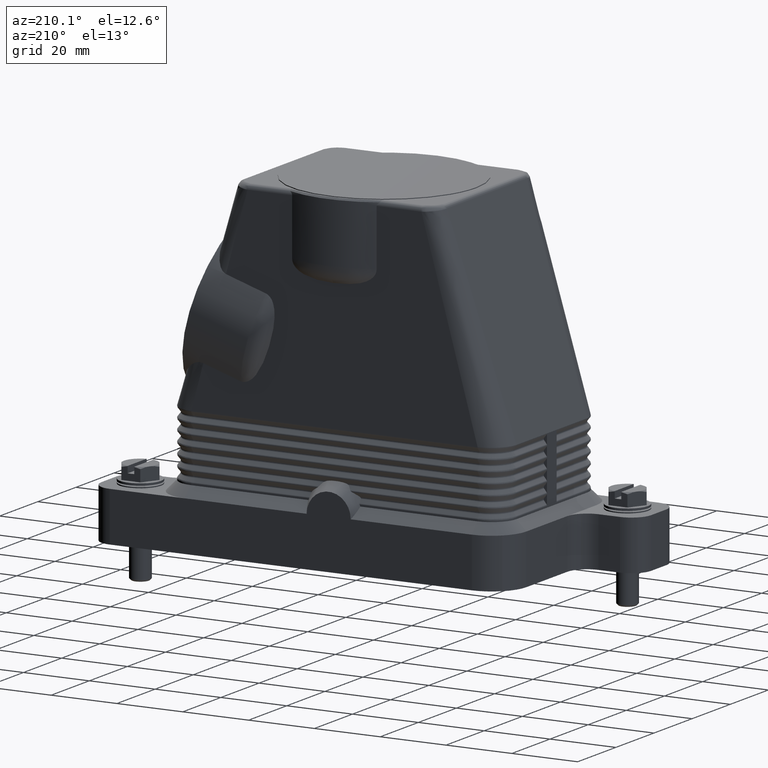
[diagram: clean part render]
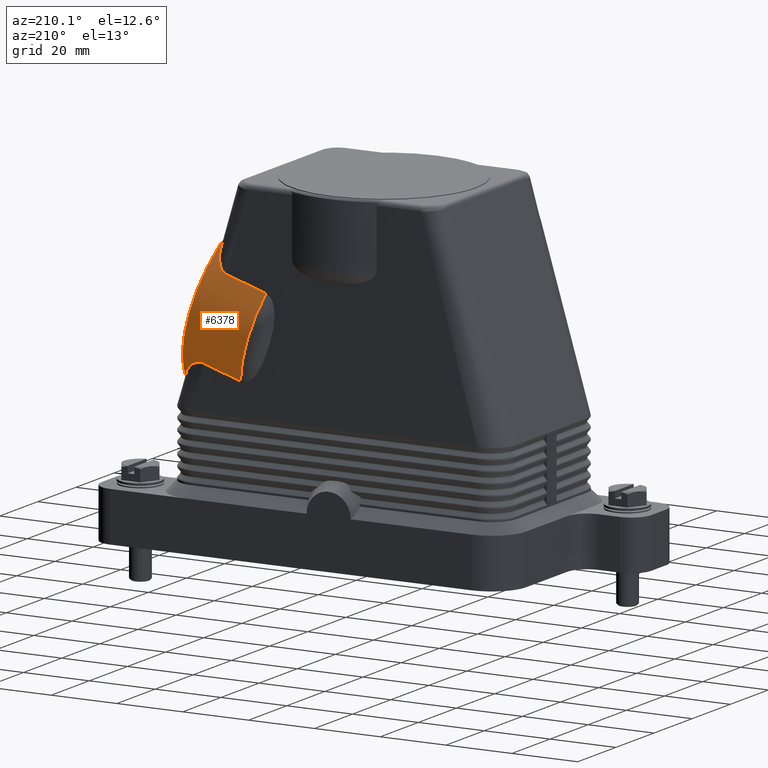
[diagram: same view with one face highlighted and labeled with its STEP entity id]
A machine part, auxiliary view. The second image highlights one B-rep face of the part: STEP entity #6378.
In plain terms, the highlighted cylindrical surface (partial cylindrical patch) has radius 29 mm, axis along (-0.9531, 0, -0.3025).
Its self-contained STEP definition (entity closure, byte-faithful):
#6243=CARTESIAN_POINT('',(33.492847036137952,0.0,62.741032444117224));
#6244=DIRECTION('',(-0.953137879773766,0.0,-0.302536249299766));
#6245=DIRECTION('',(-0.302536249299748,0.0,0.953137879773772));
#6246=AXIS2_PLACEMENT_3D('',#6243,#6244,#6245);
#6247=CYLINDRICAL_SURFACE('',#6246,28.999999999999975);
#6248=CARTESIAN_POINT('',(33.535821194352074,0.0,93.180491263579228));
#6249=VERTEX_POINT('',#6248);
#6250=CARTESIAN_POINT('',(33.487275453484898,-3.551358E-015,93.165082321522590));
#6251=VERTEX_POINT('',#6250);
#6252=CARTESIAN_POINT('',(33.535821194352074,0.0,93.180491263579228));
#6253=DIRECTION('',(-0.953137879773845,-6.972670E-014,-0.302536249299518));
#6254=VECTOR('',#6253,0.050932548057680);
#6255=LINE('',#6252,#6254);
#6256=EDGE_CURVE('',#6249,#6251,#6255,.T.);
#6257=ORIENTED_EDGE('',*,*,#6256,.F.);
#6258=CARTESIAN_POINT('',(51.082923653738504,3.551358E-015,37.898494236700905));
#6259=VERTEX_POINT('',#6258);
#6260=CARTESIAN_POINT('',(42.309372424045293,0.0,65.539492750140070));
#6261=DIRECTION('',(-0.953137879773771,0.0,-0.302536249299748));
#6262=DIRECTION('',(-0.302536249299748,0.0,0.953137879773771));
#6263=AXIS2_PLACEMENT_3D('',#6260,#6261,#6262);
#6264=CIRCLE('',#6263,28.999999999999954);
#6265=EDGE_CURVE('',#6249,#6259,#6264,.T.);
#6266=ORIENTED_EDGE('',*,*,#6265,.T.);
#6267=CARTESIAN_POINT('',(51.0,3.551358E-015,37.872173374092590));
#6268=VERTEX_POINT('',#6267);
#6269=CARTESIAN_POINT('',(51.0,3.551358E-015,37.872173374092590));
#6270=DIRECTION('',(0.953137879773672,-3.626918E-029,0.302536249300061));
#6271=VECTOR('',#6270,0.087000690559266);
#6272=LINE('',#6269,#6271);
#6273=EDGE_CURVE('',#6268,#6259,#6272,.T.);
#6274=ORIENTED_EDGE('',*,*,#6273,.F.);
#6275=CARTESIAN_POINT('',(51.0,2.500000000000000,37.985440904324719));
#6276=VERTEX_POINT('',#6275);
#6277=CARTESIAN_POINT('',(51.0,0.0,68.297991731960536));
#6278=DIRECTION('',(-1.0,0.0,0.0));
#6279=DIRECTION('',(0.0,0.0,1.0));
#6280=AXIS2_PLACEMENT_3D('',#6277,#6278,#6279);
#6281=ELLIPSE('',#6280,30.425818357867946,28.999999999999975);
#6282=EDGE_CURVE('',#6276,#6268,#6281,.T.);
#6283=ORIENTED_EDGE('',*,*,#6282,.F.);
#6284=CARTESIAN_POINT('',(51.045868307072212,2.500000000000000,38.0));
#6285=VERTEX_POINT('',#6284);
#6286=CARTESIAN_POINT('',(51.0,2.500000000000000,37.985440904324719));
#6287=DIRECTION('',(0.953137879773740,0.0,0.302536249299848));
#6288=VECTOR('',#6287,0.048123475150416);
#6289=LINE('',#6286,#6288);
#6290=EDGE_CURVE('',#6276,#6285,#6289,.T.);
#6291=ORIENTED_EDGE('',*,*,#6290,.T.);
#6292=CARTESIAN_POINT('',(51.0,2.655497513687477,38.0));
#6293=VERTEX_POINT('',#6292);
#6294=CARTESIAN_POINT('',(-44.453565209602957,0.0,38.0));
#6295=DIRECTION('',(0.0,0.0,1.0));
#6296=DIRECTION('',(-1.0,0.0,0.0));
#6297=AXIS2_PLACEMENT_3D('',#6294,#6295,#6296);
#6298=ELLIPSE('',#6297,95.856281907116156,28.999999999999975);
#6299=EDGE_CURVE('',#6285,#6293,#6298,.T.);
#6300=ORIENTED_EDGE('',*,*,#6299,.T.);
#6301=CARTESIAN_POINT('',(48.954645130864243,18.755669358655240,44.442867837777634));
#6302=VERTEX_POINT('',#6301);
#6303=CARTESIAN_POINT('',(42.262070302744476,0.0,65.524478546354914));
#6304=DIRECTION('',(-0.953124267144543,0.0,-0.302579132426839));
#6305=DIRECTION('',(-0.302579132426839,0.0,0.953124267144543));
#6306=AXIS2_PLACEMENT_3D('',#6303,#6304,#6305);
#6307=ELLIPSE('',#6306,29.000000029351835,28.999999999999975);
#6308=EDGE_CURVE('',#6302,#6293,#6307,.T.);
#6309=ORIENTED_EDGE('',*,*,#6308,.F.);
#6310=CARTESIAN_POINT('',(39.813731608743971,26.000000000000007,51.270566208521714));
#6311=VERTEX_POINT('',#6310);
#6312=CARTESIAN_POINT('',(39.813731608743971,26.000000000000007,51.270566208521714));
#6313=CARTESIAN_POINT('',(40.107042061982142,26.000000000000007,51.363666111784553));
#6314=CARTESIAN_POINT('',(40.406654988840963,25.978179768970584,51.412172055037139));
#6315=CARTESIAN_POINT('',(41.033270915759161,25.892202432111407,51.430727751315366));
#6316=CARTESIAN_POINT('',(41.351229390465356,25.826938915078301,51.395927541091162));
#6317=CARTESIAN_POINT('',(42.357360383080682,25.564603071980613,51.184309204904679));
#6318=CARTESIAN_POINT('',(43.026701158661105,25.298246080649204,50.880317332038921));
#6319=CARTESIAN_POINT('',(44.827645404054657,24.398560202220168,49.845109116047325));
#6320=CARTESIAN_POINT('',(46.075411677884908,23.488190717387706,48.780583735363408));
#6321=CARTESIAN_POINT('',(47.961762938260108,21.250566974368652,46.560794732639799));
#6322=CARTESIAN_POINT('',(48.623071541848297,20.047967293587121,45.487324643177871));
#6323=CARTESIAN_POINT('',(48.954645130875804,18.755669358640532,44.442867837741218));
#6324=B_SPLINE_CURVE_WITH_KNOTS('',3,(#6312,#6313,#6314,#6315,#6316,#6317,#6318,#6319,#6320,#6321,#6322,#6323),.UNSPECIFIED.,.F.,.U.,(4,2,2,2,2,4),(-1.635917755287671,-1.515892984327481,-1.389082064794764,-1.101826407754325,-0.508308815035472,0.0),.UNSPECIFIED.);
#6325=EDGE_CURVE('',#6311,#6302,#6324,.T.);
#6326=ORIENTED_EDGE('',*,*,#6325,.F.);
#6327=CARTESIAN_POINT('',(28.562470133963117,26.000000000000007,47.699294392864630));
#6328=VERTEX_POINT('',#6327);
#6329=CARTESIAN_POINT('',(28.562470133963117,26.000000000000007,47.699294392864630));
#6330=DIRECTION('',(0.953137879773765,0.0,0.302536249299770));
#6331=VECTOR('',#6330,11.804442687191738);
#6332=LINE('',#6329,#6331);
#6333=EDGE_CURVE('',#6328,#6311,#6332,.T.);
#6334=ORIENTED_EDGE('',*,*,#6333,.F.);
#6335=CARTESIAN_POINT('',(20.790173162498110,26.000000000000007,72.185849883324124));
#6336=VERTEX_POINT('',#6335);
#6337=CARTESIAN_POINT('',(24.676321648230612,0.0,59.942572138094377));
#6338=DIRECTION('',(-0.953137879773772,0.0,-0.302536249299748));
#6339=DIRECTION('',(-0.302536249299748,0.0,0.953137879773772));
#6340=AXIS2_PLACEMENT_3D('',#6337,#6338,#6339);
#6341=CIRCLE('',#6340,28.999999999999989);
#6342=EDGE_CURVE('',#6336,#6328,#6341,.T.);
#6343=ORIENTED_EDGE('',*,*,#6342,.F.);
#6344=CARTESIAN_POINT('',(32.933277181327057,26.000000000000007,76.040202147222601));
#6345=VERTEX_POINT('',#6344);
#6346=CARTESIAN_POINT('',(32.933277181327057,26.000000000000007,76.040202147222601));
#6347=DIRECTION('',(-0.953137879773766,0.0,-0.302536249299765));
#6348=VECTOR('',#6347,12.740133695778825);
#6349=LINE('',#6346,#6348);
#6350=EDGE_CURVE('',#6345,#6336,#6349,.T.);
#6351=ORIENTED_EDGE('',*,*,#6350,.F.);
#6352=CARTESIAN_POINT('',(36.017292543392323,20.372838432075973,85.195528488314253));
#6353=VERTEX_POINT('',#6352);
#6354=CARTESIAN_POINT('',(36.017292543392301,20.372838432075966,85.195528488314253));
#6355=CARTESIAN_POINT('',(36.278879433971184,21.248635474511801,84.371529782990791));
#6356=CARTESIAN_POINT('',(36.361905631334082,22.074943306091850,83.421929644889559));
#6357=CARTESIAN_POINT('',(36.235351103007829,23.616208079143792,81.323672913917079));
#6358=CARTESIAN_POINT('',(35.993491102515954,24.281085835493510,80.201982268624917));
#6359=CARTESIAN_POINT('',(35.372541557873113,25.131498761914980,78.536233194438353));
#6360=CARTESIAN_POINT('',(35.052022266572330,25.411611513182962,77.903181597354802));
#6361=CARTESIAN_POINT('',(34.422843832348072,25.742097508755247,77.050273586344460));
#6362=CARTESIAN_POINT('',(34.135479954626184,25.849156600900777,76.738434782346545));
#6363=CARTESIAN_POINT('',(33.534827322697474,25.970810089447568,76.293519609050264));
#6364=CARTESIAN_POINT('',(33.247807496672799,26.000000000000007,76.140037463723004));
#6365=CARTESIAN_POINT('',(32.933277181327071,26.000000000000007,76.040202147222573));
#6366=B_SPLINE_CURVE_WITH_KNOTS('',3,(#6354,#6355,#6356,#6357,#6358,#6359,#6360,#6361,#6362,#6363,#6364,#6365),.UNSPECIFIED.,.F.,.U.,(4,2,2,2,2,4),(-0.996364716012573,-0.729675144682590,-0.432080381048955,-0.227227785364295,-0.098998368028469,0.0),.UNSPECIFIED.);
#6367=EDGE_CURVE('',#6353,#6345,#6366,.T.);
#6368=ORIENTED_EDGE('',*,*,#6367,.F.);
#6369=CARTESIAN_POINT('',(42.262070302744476,0.0,65.524478546354914));
#6370=DIRECTION('',(-0.953124267144543,0.0,-0.302579132426839));
#6371=DIRECTION('',(-0.302579132426839,0.0,0.953124267144543));
#6372=AXIS2_PLACEMENT_3D('',#6369,#6370,#6371);
#6373=ELLIPSE('',#6372,29.000000029351835,28.999999999999975);
#6374=EDGE_CURVE('',#6251,#6353,#6373,.T.);
#6375=ORIENTED_EDGE('',*,*,#6374,.F.);
#6376=EDGE_LOOP('',(#6257,#6266,#6274,#6283,#6291,#6300,#6309,#6326,#6334,#6343,#6351,#6368,#6375));
#6377=FACE_OUTER_BOUND('',#6376,.T.);
#6378=ADVANCED_FACE('',(#6377),#6247,.T.);